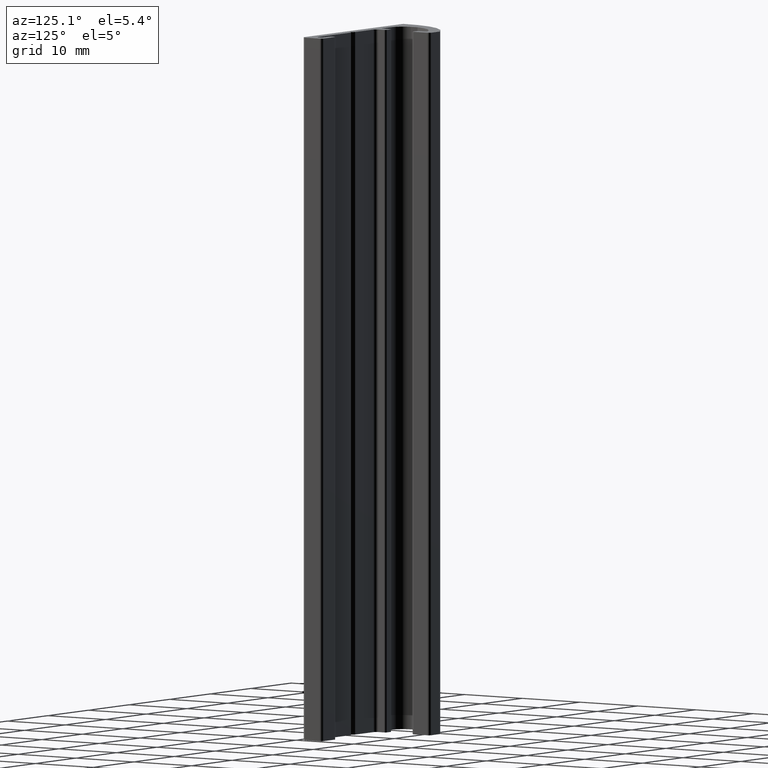
[diagram: clean part render]
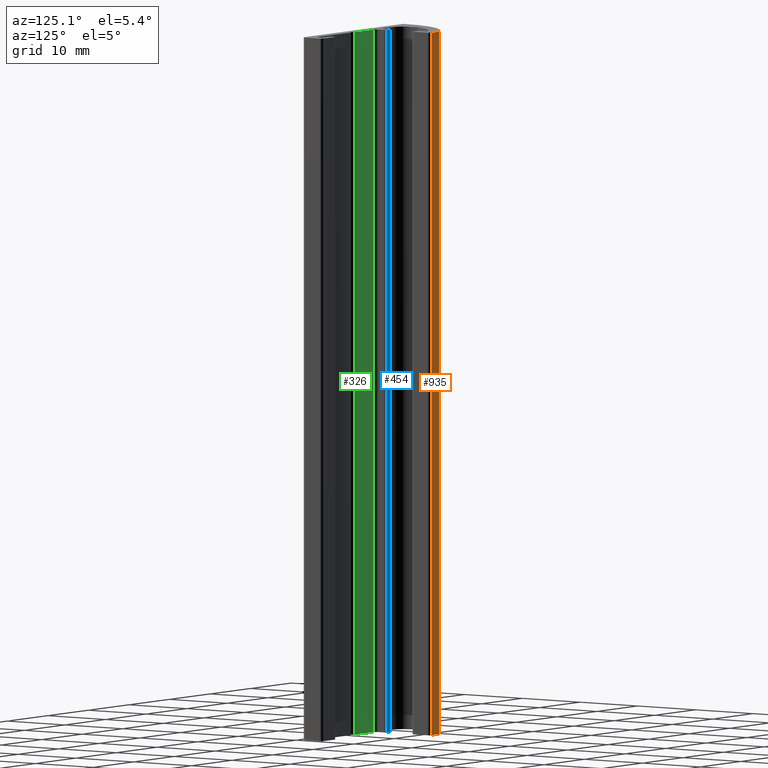
[diagram: same view with three faces highlighted in distinct colors, each labeled with its STEP entity id]
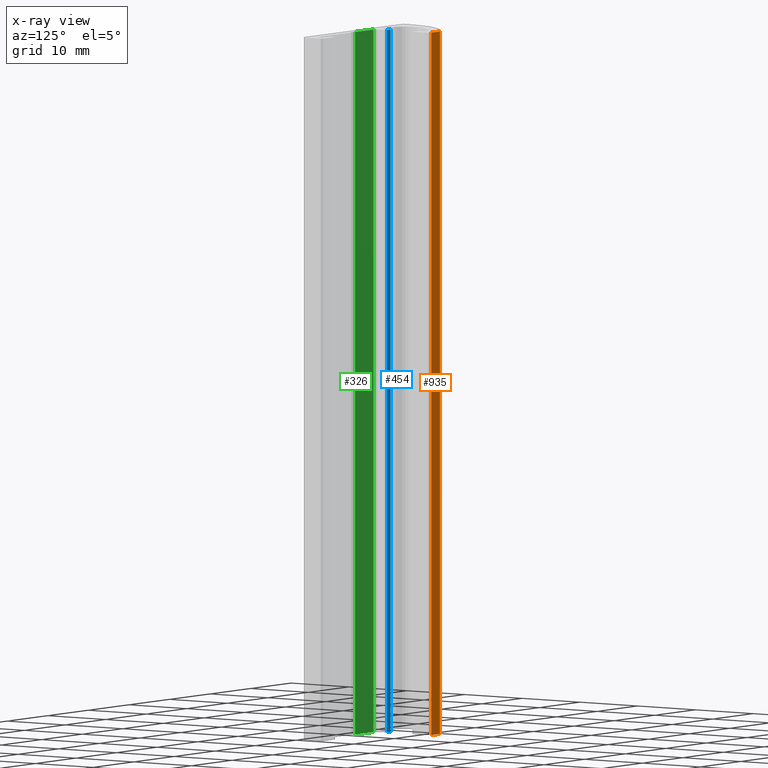
[diagram: x-ray of the same camera — body ghosted, the three highlighted faces saturated]
A machine part, auxiliary view with three faces highlighted in distinct colors.
The next image is the same camera in x-ray (body ghosted, the three faces saturated) — at least one of them is partly hidden behind the body in this view.
Their STEP definitions:

[orange] entity #935 — the highlighted planar face has unit normal (0, 1, 0).
#877=CARTESIAN_POINT('',(-3.663002741754326,10.899999998902047,0.0));
#878=VERTEX_POINT('',#877);
#886=CARTESIAN_POINT('',(-3.663002741754326,10.899999998902047,100.0));
#887=VERTEX_POINT('',#886);
#888=CARTESIAN_POINT('',(-3.663002741754326,10.899999998902047,0.0));
#889=DIRECTION('',(0.0,0.0,1.0));
#890=VECTOR('',#889,100.0);
#891=LINE('',#888,#890);
#892=EDGE_CURVE('',#878,#887,#891,.T.);
#905=CARTESIAN_POINT('',(-3.663002741754326,10.899999998902047,0.0));
#906=DIRECTION('',(0.0,1.0,0.0));
#907=DIRECTION('',(-1.0,0.0,0.0));
#908=AXIS2_PLACEMENT_3D('',#905,#906,#907);
#909=PLANE('',#908);
#910=CARTESIAN_POINT('',(-5.762787267910426,10.899999998901933,0.0));
#911=VERTEX_POINT('',#910);
#912=CARTESIAN_POINT('',(-3.663002741754326,10.899999998902047,0.0));
#913=DIRECTION('',(-1.0,0.0,0.0));
#914=VECTOR('',#913,2.099784526156089);
#915=LINE('',#912,#914);
#916=EDGE_CURVE('',#878,#911,#915,.T.);
#917=ORIENTED_EDGE('',*,*,#916,.T.);
#918=CARTESIAN_POINT('',(-5.762787267910426,10.899999998901933,100.0));
#919=VERTEX_POINT('',#918);
#920=CARTESIAN_POINT('',(-5.762787267910426,10.899999998901933,0.0));
#921=DIRECTION('',(0.0,0.0,1.0));
#922=VECTOR('',#921,100.0);
#923=LINE('',#920,#922);
#924=EDGE_CURVE('',#911,#919,#923,.T.);
#925=ORIENTED_EDGE('',*,*,#924,.T.);
#926=CARTESIAN_POINT('',(-3.663002741754326,10.899999998902047,100.0));
#927=DIRECTION('',(-1.0,0.0,0.0));
#928=VECTOR('',#927,2.099784526156089);
#929=LINE('',#926,#928);
#930=EDGE_CURVE('',#887,#919,#929,.T.);
#931=ORIENTED_EDGE('',*,*,#930,.F.);
#932=ORIENTED_EDGE('',*,*,#892,.F.);
#933=EDGE_LOOP('',(#917,#925,#931,#932));
#934=FACE_OUTER_BOUND('',#933,.T.);
#935=ADVANCED_FACE('',(#934),#909,.T.);

[blue] entity #454 — the highlighted planar face has unit normal (0, 1, 0).
#396=CARTESIAN_POINT('',(-3.555692566391940,3.299999999661964,0.0));
#397=VERTEX_POINT('',#396);
#405=CARTESIAN_POINT('',(-3.555692566391940,3.299999999661964,100.0));
#406=VERTEX_POINT('',#405);
#407=CARTESIAN_POINT('',(-3.555692566391940,3.299999999661964,0.0));
#408=DIRECTION('',(0.0,0.0,1.0));
#409=VECTOR('',#408,100.0);
#410=LINE('',#407,#409);
#411=EDGE_CURVE('',#397,#406,#410,.T.);
#424=CARTESIAN_POINT('',(-3.555692566391940,3.299999999661964,0.0));
#425=DIRECTION('',(0.0,1.0,0.0));
#426=DIRECTION('',(-1.0,0.0,0.0));
#427=AXIS2_PLACEMENT_3D('',#424,#425,#426);
#428=PLANE('',#427);
#429=CARTESIAN_POINT('',(-4.455692566301991,3.299999999661964,0.0));
#430=VERTEX_POINT('',#429);
#431=CARTESIAN_POINT('',(-3.555692566391940,3.299999999661964,0.0));
#432=DIRECTION('',(-1.0,0.0,0.0));
#433=VECTOR('',#432,0.899999999910051);
#434=LINE('',#431,#433);
#435=EDGE_CURVE('',#397,#430,#434,.T.);
#436=ORIENTED_EDGE('',*,*,#435,.T.);
#437=CARTESIAN_POINT('',(-4.455692566301991,3.299999999661964,100.0));
#438=VERTEX_POINT('',#437);
#439=CARTESIAN_POINT('',(-4.455692566301991,3.299999999661964,0.0));
#440=DIRECTION('',(0.0,0.0,1.0));
#441=VECTOR('',#440,100.0);
#442=LINE('',#439,#441);
#443=EDGE_CURVE('',#430,#438,#442,.T.);
#444=ORIENTED_EDGE('',*,*,#443,.T.);
#445=CARTESIAN_POINT('',(-3.555692566391940,3.299999999661964,100.0));
#446=DIRECTION('',(-1.0,0.0,0.0));
#447=VECTOR('',#446,0.899999999910051);
#448=LINE('',#445,#447);
#449=EDGE_CURVE('',#406,#438,#448,.T.);
#450=ORIENTED_EDGE('',*,*,#449,.F.);
#451=ORIENTED_EDGE('',*,*,#411,.F.);
#452=EDGE_LOOP('',(#436,#444,#450,#451));
#453=FACE_OUTER_BOUND('',#452,.T.);
#454=ADVANCED_FACE('',(#453),#428,.T.);

[green] entity #326 — the highlighted planar face has unit normal (0, 1, 0).
#270=CARTESIAN_POINT('',(1.744307433078006,1.499999999841919,0.0));
#271=VERTEX_POINT('',#270);
#278=CARTESIAN_POINT('',(1.744307433078006,1.499999999841919,100.0));
#279=VERTEX_POINT('',#278);
#280=CARTESIAN_POINT('',(1.744307433078006,1.499999999841919,0.0));
#281=DIRECTION('',(0.0,0.0,1.0));
#282=VECTOR('',#281,100.0);
#283=LINE('',#280,#282);
#284=EDGE_CURVE('',#271,#279,#283,.T.);
#296=CARTESIAN_POINT('',(1.744307433078006,1.499999999841919,0.0));
#297=DIRECTION('',(0.0,1.0,0.0));
#298=DIRECTION('',(-1.0,0.0,0.0));
#299=AXIS2_PLACEMENT_3D('',#296,#297,#298);
#300=PLANE('',#299);
#301=CARTESIAN_POINT('',(-2.755692566471907,1.499999999842089,0.0));
#302=VERTEX_POINT('',#301);
#303=CARTESIAN_POINT('',(1.744307433078006,1.499999999841919,0.0));
#304=DIRECTION('',(-1.0,0.0,0.0));
#305=VECTOR('',#304,4.499999999549914);
#306=LINE('',#303,#305);
#307=EDGE_CURVE('',#271,#302,#306,.T.);
#308=ORIENTED_EDGE('',*,*,#307,.T.);
#309=CARTESIAN_POINT('',(-2.755692566471907,1.499999999842089,100.0));
#310=VERTEX_POINT('',#309);
#311=CARTESIAN_POINT('',(-2.755692566471907,1.499999999842089,0.0));
#312=DIRECTION('',(0.0,0.0,1.0));
#313=VECTOR('',#312,100.0);
#314=LINE('',#311,#313);
#315=EDGE_CURVE('',#302,#310,#314,.T.);
#316=ORIENTED_EDGE('',*,*,#315,.T.);
#317=CARTESIAN_POINT('',(1.744307433078006,1.499999999841919,100.0));
#318=DIRECTION('',(-1.0,0.0,0.0));
#319=VECTOR('',#318,4.499999999549914);
#320=LINE('',#317,#319);
#321=EDGE_CURVE('',#279,#310,#320,.T.);
#322=ORIENTED_EDGE('',*,*,#321,.F.);
#323=ORIENTED_EDGE('',*,*,#284,.F.);
#324=EDGE_LOOP('',(#308,#316,#322,#323));
#325=FACE_OUTER_BOUND('',#324,.T.);
#326=ADVANCED_FACE('',(#325),#300,.T.);